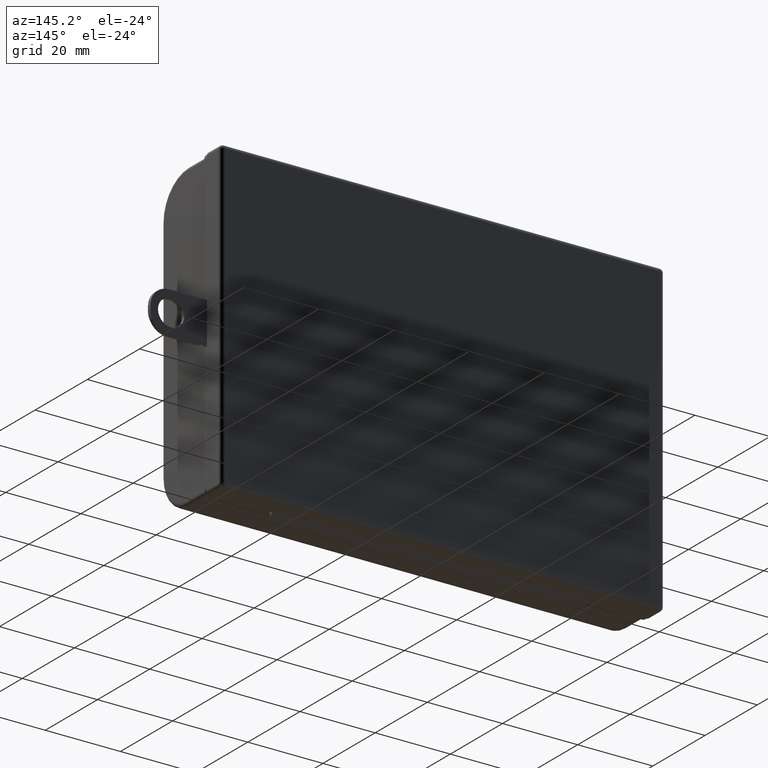
[diagram: clean part render]
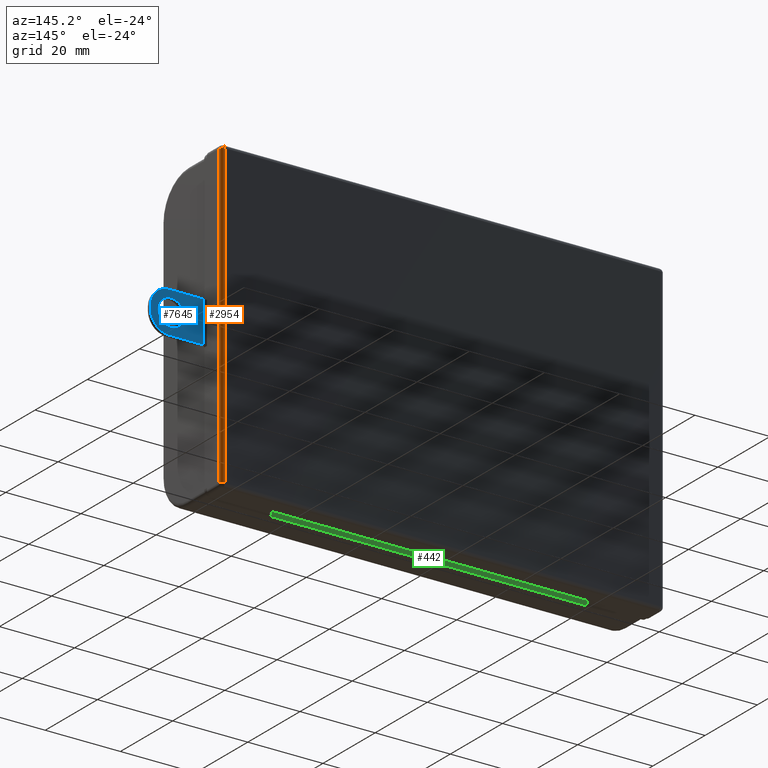
[diagram: same view with three faces highlighted in distinct colors, each labeled with its STEP entity id]
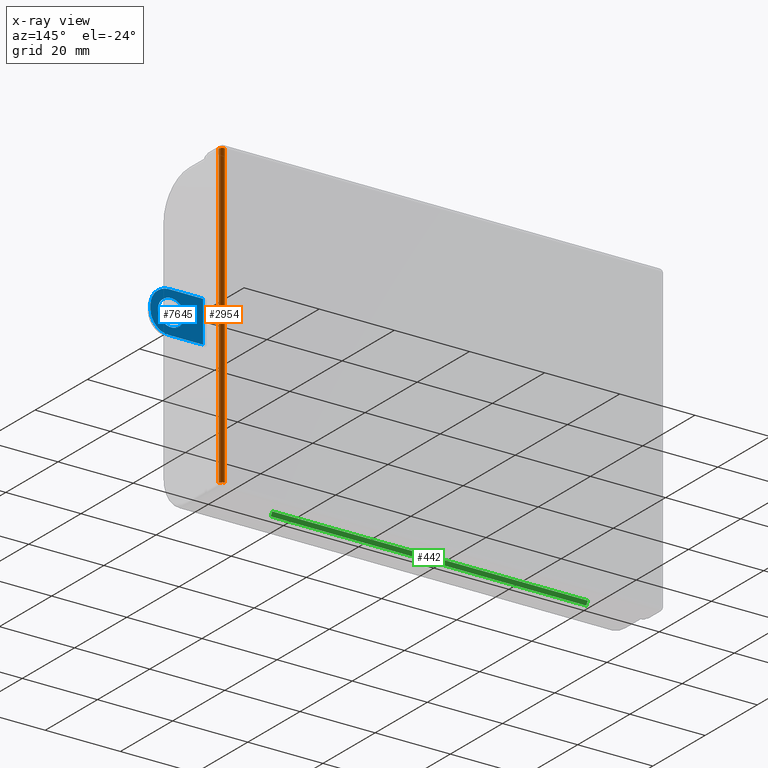
[diagram: x-ray of the same camera — body ghosted, the three highlighted faces saturated]
A machine part, auxiliary view with three faces highlighted in distinct colors.
The next image is the same camera in x-ray (body ghosted, the three faces saturated) — at least one of them is partly hidden behind the body in this view.
Their STEP definitions:

[orange] entity #2954 — the highlighted cylindrical surface (edge-blend (fillet) strip) has radius 1 mm, axis along (0, 0, 1).
#43 = CIRCLE ( 'NONE', #1108, 1.000000000000000888 ) ;
#134 = DIRECTION ( 'NONE',  ( 1.692413147294446463E-16, -0.000000000000000000, 1.000000000000000000 ) ) ;
#218 = DIRECTION ( 'NONE',  ( 1.000000000000000000, 0.000000000000000000, -1.692413147294445970E-16 ) ) ;
#403 = CARTESIAN_POINT ( 'NONE',  ( 57.99999999999997868, 5.500000000000000000, 39.99999999999997868 ) ) ;
#559 = CIRCLE ( 'NONE', #4786, 1.000000000000000888 ) ;
#675 = FACE_OUTER_BOUND ( 'NONE', #4752, .T. ) ;
#822 = EDGE_CURVE ( 'NONE', #4775, #4637, #3557, .T. ) ;
#1108 = AXIS2_PLACEMENT_3D ( 'NONE', #7493, #1829, #6257 ) ;
#1570 = EDGE_CURVE ( 'NONE', #7530, #7844, #6722, .T. ) ;
#1663 = ORIENTED_EDGE ( 'NONE', *, *, #1570, .F. ) ;
#1829 = DIRECTION ( 'NONE',  ( 0.000000000000000000, 0.000000000000000000, -1.000000000000000000 ) ) ;
#2076 = CARTESIAN_POINT ( 'NONE',  ( 58.99999999999996447, 5.500000000000000000, -40.00000000000000711 ) ) ;
#2082 = EDGE_CURVE ( 'NONE', #7844, #4775, #43, .T. ) ;
#2386 = EDGE_CURVE ( 'NONE', #7530, #4637, #559, .T. ) ;
#2413 = CARTESIAN_POINT ( 'NONE',  ( 58.99999999999997868, 5.500000000000000000, 39.99999999999997868 ) ) ;
#2434 = ORIENTED_EDGE ( 'NONE', *, *, #2386, .T. ) ;
#2794 = CARTESIAN_POINT ( 'NONE',  ( 57.99999999999996447, 6.500000000000000000, -40.00000000000000711 ) ) ;
#2954 = ADVANCED_FACE ( 'NONE', ( #675 ), #3197, .T. ) ;
#3197 = CYLINDRICAL_SURFACE ( 'NONE', #6828, 1.000000000000000888 ) ;
#3258 = VECTOR ( 'NONE', #4105, 1000.000000000000000 ) ;
#3557 = LINE ( 'NONE', #4257, #3614 ) ;
#3614 = VECTOR ( 'NONE', #5006, 1000.000000000000000 ) ;
#4105 = DIRECTION ( 'NONE',  ( -1.692413147294446463E-16, 0.000000000000000000, -1.000000000000000000 ) ) ;
#4257 = CARTESIAN_POINT ( 'NONE',  ( 58.99999999999997868, 5.500000000000000000, 39.99999999999997868 ) ) ;
#4300 = ORIENTED_EDGE ( 'NONE', *, *, #2082, .F. ) ;
#4510 = ORIENTED_EDGE ( 'NONE', *, *, #822, .F. ) ;
#4637 = VERTEX_POINT ( 'NONE', #2413 ) ;
#4748 = DIRECTION ( 'NONE',  ( -1.000000000000000000, 0.000000000000000000, 0.000000000000000000 ) ) ;
#4752 = EDGE_LOOP ( 'NONE', ( #2434, #4510, #4300, #1663 ) ) ;
#4775 = VERTEX_POINT ( 'NONE', #2076 ) ;
#4786 = AXIS2_PLACEMENT_3D ( 'NONE', #403, #6046, #4748 ) ;
#5006 = DIRECTION ( 'NONE',  ( 1.692413147294446463E-16, -0.000000000000000000, 1.000000000000000000 ) ) ;
#5933 = CARTESIAN_POINT ( 'NONE',  ( 57.99999999999997158, 5.500000000000000000, -9.815996254307784061E-15 ) ) ;
#6046 = DIRECTION ( 'NONE',  ( 0.000000000000000000, 0.000000000000000000, -1.000000000000000000 ) ) ;
#6257 = DIRECTION ( 'NONE',  ( -1.000000000000000000, 0.000000000000000000, 0.000000000000000000 ) ) ;
#6722 = LINE ( 'NONE', #2794, #3258 ) ;
#6765 = CARTESIAN_POINT ( 'NONE',  ( 57.99999999999997868, 6.500000000000000000, 39.99999999999999289 ) ) ;
#6828 = AXIS2_PLACEMENT_3D ( 'NONE', #5933, #134, #218 ) ;
#7015 = CARTESIAN_POINT ( 'NONE',  ( 57.99999999999996447, 6.500000000000000000, -40.00000000000000711 ) ) ;
#7493 = CARTESIAN_POINT ( 'NONE',  ( 57.99999999999996447, 5.500000000000000000, -40.00000000000000711 ) ) ;
#7530 = VERTEX_POINT ( 'NONE', #6765 ) ;
#7844 = VERTEX_POINT ( 'NONE', #7015 ) ;

[blue] entity #7645 — the highlighted planar face has unit normal (-0, 1, 0).
#11 = FACE_OUTER_BOUND ( 'NONE', #5202, .T. ) ;
#161 = CARTESIAN_POINT ( 'NONE',  ( 5.500000000000002665, 1.000000000000000000, -1.500000000000002220 ) ) ;
#347 = CARTESIAN_POINT ( 'NONE',  ( 5.500000000000001776, 1.000000000000000000, -6.500000000000000000 ) ) ;
#383 = LINE ( 'NONE', #347, #3647 ) ;
#397 = EDGE_CURVE ( 'NONE', #7100, #7833, #6881, .T. ) ;
#447 = CARTESIAN_POINT ( 'NONE',  ( 0.5000000000000022204, 1.000000000000000000, -6.500000000000000000 ) ) ;
#468 = ORIENTED_EDGE ( 'NONE', *, *, #7293, .T. ) ;
#479 = VERTEX_POINT ( 'NONE', #4310 ) ;
#568 = DIRECTION ( 'NONE',  ( 0.000000000000000000, 1.000000000000000000, 0.000000000000000000 ) ) ;
#598 = PLANE ( 'NONE',  #1359 ) ;
#620 = EDGE_CURVE ( 'NONE', #7933, #6187, #7087, .T. ) ;
#793 = CARTESIAN_POINT ( 'NONE',  ( 5.500000000000000000, 0.9999999999999995559, 7.500000000000000000 ) ) ;
#797 = CIRCLE ( 'NONE', #6085, 3.500000000000000000 ) ;
#1020 = CARTESIAN_POINT ( 'NONE',  ( -0.4999999999999989453, 1.000000000000000000, -1.499999999999999556 ) ) ;
#1083 = CARTESIAN_POINT ( 'NONE',  ( 5.500000000000000000, 0.9999999999999995559, 7.500000000000000000 ) ) ;
#1224 = AXIS2_PLACEMENT_3D ( 'NONE', #6084, #2812, #4011 ) ;
#1240 = CIRCLE ( 'NONE', #2309, 5.000000000000000000 ) ;
#1288 = LINE ( 'NONE', #6342, #4280 ) ;
#1359 = AXIS2_PLACEMENT_3D ( 'NONE', #5648, #2592, #6973 ) ;
#1491 = CIRCLE ( 'NONE', #1224, 3.500000000000000000 ) ;
#1531 = EDGE_CURVE ( 'NONE', #7933, #4730, #383, .T. ) ;
#1854 = ORIENTED_EDGE ( 'NONE', *, *, #2267, .T. ) ;
#2267 = EDGE_CURVE ( 'NONE', #479, #6187, #1288, .T. ) ;
#2299 = EDGE_CURVE ( 'NONE', #8123, #6070, #1491, .T. ) ;
#2309 = AXIS2_PLACEMENT_3D ( 'NONE', #5707, #568, #5623 ) ;
#2312 = ORIENTED_EDGE ( 'NONE', *, *, #1531, .T. ) ;
#2343 = DIRECTION ( 'NONE',  ( -1.334402673828313339E-16, -0.000000000000000000, -1.000000000000000000 ) ) ;
#2482 = DIRECTION ( 'NONE',  ( 0.000000000000000000, 0.000000000000000000, 1.000000000000000000 ) ) ;
#2532 = EDGE_LOOP ( 'NONE', ( #7548, #3696 ) ) ;
#2592 = DIRECTION ( 'NONE',  ( 0.000000000000000000, 1.000000000000000000, 0.000000000000000000 ) ) ;
#2812 = DIRECTION ( 'NONE',  ( 0.000000000000000000, 1.000000000000000000, 0.000000000000000000 ) ) ;
#2870 = ORIENTED_EDGE ( 'NONE', *, *, #4209, .T. ) ;
#3064 = CARTESIAN_POINT ( 'NONE',  ( 0.000000000000000000, 1.000000000000000000, -4.500000000000000888 ) ) ;
#3095 = CARTESIAN_POINT ( 'NONE',  ( 0.000000000000000000, 1.000000000000000000, -1.000000000000000000 ) ) ;
#3315 = DIRECTION ( 'NONE',  ( -1.000000000000000000, -0.000000000000000000, -0.000000000000000000 ) ) ;
#3403 = CARTESIAN_POINT ( 'NONE',  ( -0.4999999999999987232, 1.000000000000000000, -6.500000000000000000 ) ) ;
#3473 = VECTOR ( 'NONE', #3315, 1000.000000000000000 ) ;
#3603 = CARTESIAN_POINT ( 'NONE',  ( -5.500000000000000000, 0.9999999999999995559, 7.500000000000000000 ) ) ;
#3647 = VECTOR ( 'NONE', #2343, 1000.000000000000000 ) ;
#3648 = ORIENTED_EDGE ( 'NONE', *, *, #397, .T. ) ;
#3696 = ORIENTED_EDGE ( 'NONE', *, *, #4987, .F. ) ;
#4011 = DIRECTION ( 'NONE',  ( 0.000000000000000000, 0.000000000000000000, 1.000000000000000000 ) ) ;
#4075 = DIRECTION ( 'NONE',  ( 0.000000000000000000, 1.000000000000000000, 0.000000000000000000 ) ) ;
#4209 = EDGE_CURVE ( 'NONE', #7833, #479, #7098, .T. ) ;
#4280 = VECTOR ( 'NONE', #5842, 1000.000000000000000 ) ;
#4310 = CARTESIAN_POINT ( 'NONE',  ( -5.499999999999999112, 1.000000000000000000, -1.500000000000000444 ) ) ;
#4730 = VERTEX_POINT ( 'NONE', #161 ) ;
#4987 = EDGE_CURVE ( 'NONE', #6070, #8123, #797, .T. ) ;
#5018 = CARTESIAN_POINT ( 'NONE',  ( -5.500000000000000000, 1.000000000000000000, -6.500000000000000000 ) ) ;
#5202 = EDGE_LOOP ( 'NONE', ( #2312, #468, #3648, #2870, #1854, #6309 ) ) ;
#5480 = DIRECTION ( 'NONE',  ( -1.000000000000000000, -0.000000000000000000, -0.000000000000000000 ) ) ;
#5623 = DIRECTION ( 'NONE',  ( 0.000000000000000000, 0.000000000000000000, 1.000000000000000000 ) ) ;
#5648 = CARTESIAN_POINT ( 'NONE',  ( 0.000000000000000000, 1.000000000000000000, 0.000000000000000000 ) ) ;
#5707 = CARTESIAN_POINT ( 'NONE',  ( 0.5000000000000022204, 1.000000000000000000, -1.499999999999999556 ) ) ;
#5842 = DIRECTION ( 'NONE',  ( 1.334402673828313339E-16, 0.000000000000000000, 1.000000000000000000 ) ) ;
#6070 = VERTEX_POINT ( 'NONE', #6591 ) ;
#6084 = CARTESIAN_POINT ( 'NONE',  ( 0.000000000000000000, 1.000000000000000000, -1.000000000000000000 ) ) ;
#6085 = AXIS2_PLACEMENT_3D ( 'NONE', #3095, #6293, #2482 ) ;
#6187 = VERTEX_POINT ( 'NONE', #3603 ) ;
#6293 = DIRECTION ( 'NONE',  ( 0.000000000000000000, 1.000000000000000000, 0.000000000000000000 ) ) ;
#6309 = ORIENTED_EDGE ( 'NONE', *, *, #620, .F. ) ;
#6316 = FACE_BOUND ( 'NONE', #2532, .T. ) ;
#6342 = CARTESIAN_POINT ( 'NONE',  ( -5.500000000000000000, 1.000000000000000000, -6.500000000000000000 ) ) ;
#6399 = VECTOR ( 'NONE', #5480, 1000.000000000000000 ) ;
#6591 = CARTESIAN_POINT ( 'NONE',  ( 4.286263797015736595E-16, 1.000000000000000000, 2.500000000000000000 ) ) ;
#6881 = LINE ( 'NONE', #5018, #6399 ) ;
#6973 = DIRECTION ( 'NONE',  ( 0.000000000000000000, -0.000000000000000000, 1.000000000000000000 ) ) ;
#7087 = LINE ( 'NONE', #793, #3473 ) ;
#7098 = CIRCLE ( 'NONE', #7759, 5.000000000000000000 ) ;
#7100 = VERTEX_POINT ( 'NONE', #447 ) ;
#7293 = EDGE_CURVE ( 'NONE', #4730, #7100, #1240, .T. ) ;
#7548 = ORIENTED_EDGE ( 'NONE', *, *, #2299, .F. ) ;
#7645 = ADVANCED_FACE ( 'NONE', ( #11, #6316 ), #598, .T. ) ;
#7759 = AXIS2_PLACEMENT_3D ( 'NONE', #1020, #4075, #7928 ) ;
#7833 = VERTEX_POINT ( 'NONE', #3403 ) ;
#7928 = DIRECTION ( 'NONE',  ( 0.000000000000000000, 0.000000000000000000, 1.000000000000000000 ) ) ;
#7933 = VERTEX_POINT ( 'NONE', #1083 ) ;
#8123 = VERTEX_POINT ( 'NONE', #3064 ) ;

[green] entity #442 — the highlighted planar face has unit normal (0, -0.866, 0.5).
#442 = ADVANCED_FACE ( 'NONE', ( #545 ), #504, .F. ) ;
#482 = CARTESIAN_POINT ( 'NONE',  ( 42.00000000000000000, 1.000000000000000000, -41.99999999999999289 ) ) ;
#504 = PLANE ( 'NONE',  #2945 ) ;
#545 = FACE_OUTER_BOUND ( 'NONE', #4568, .T. ) ;
#551 = LINE ( 'NONE', #6974, #1470 ) ;
#1255 = DIRECTION ( 'NONE',  ( 0.000000000000000000, -0.8660254037844393737, 0.4999999999999987232 ) ) ;
#1470 = VECTOR ( 'NONE', #1841, 1000.000000000000227 ) ;
#1496 = VERTEX_POINT ( 'NONE', #6107 ) ;
#1841 = DIRECTION ( 'NONE',  ( 0.000000000000000000, 0.4999999999999986677, 0.8660254037844393737 ) ) ;
#2202 = ORIENTED_EDGE ( 'NONE', *, *, #6995, .F. ) ;
#2317 = LINE ( 'NONE', #482, #8149 ) ;
#2771 = CARTESIAN_POINT ( 'NONE',  ( 42.00000000000000000, 1.000000000000000000, -41.99999999999999289 ) ) ;
#2945 = AXIS2_PLACEMENT_3D ( 'NONE', #4349, #1255, #7464 ) ;
#3433 = VERTEX_POINT ( 'NONE', #5983 ) ;
#3692 = DIRECTION ( 'NONE',  ( -1.000000000000000000, -0.000000000000000000, -0.000000000000000000 ) ) ;
#4248 = EDGE_CURVE ( 'NONE', #3433, #7049, #2317, .T. ) ;
#4272 = ORIENTED_EDGE ( 'NONE', *, *, #7715, .F. ) ;
#4349 = CARTESIAN_POINT ( 'NONE',  ( 42.00000000000000000, 1.000000000000000000, -41.99999999999999289 ) ) ;
#4508 = CARTESIAN_POINT ( 'NONE',  ( -42.00000000000000000, 1.000000000000000000, -41.99999999999999289 ) ) ;
#4550 = LINE ( 'NONE', #2771, #7719 ) ;
#4568 = EDGE_LOOP ( 'NONE', ( #7822, #4272, #2202, #7451 ) ) ;
#4985 = CARTESIAN_POINT ( 'NONE',  ( 42.00000000000000000, 1.577350269189616183, -41.00000000000000711 ) ) ;
#5215 = DIRECTION ( 'NONE',  ( 0.000000000000000000, 0.4999999999999986677, 0.8660254037844393737 ) ) ;
#5891 = VERTEX_POINT ( 'NONE', #7508 ) ;
#5957 = EDGE_CURVE ( 'NONE', #7049, #5891, #551, .T. ) ;
#5983 = CARTESIAN_POINT ( 'NONE',  ( 42.00000000000000000, 1.000000000000000000, -41.99999999999999289 ) ) ;
#6107 = CARTESIAN_POINT ( 'NONE',  ( 42.00000000000000000, 1.577350269189617515, -41.00000000000000711 ) ) ;
#6247 = VECTOR ( 'NONE', #3692, 1000.000000000000000 ) ;
#6355 = LINE ( 'NONE', #4985, #6247 ) ;
#6691 = DIRECTION ( 'NONE',  ( -1.000000000000000000, -0.000000000000000000, -0.000000000000000000 ) ) ;
#6974 = CARTESIAN_POINT ( 'NONE',  ( -42.00000000000000000, 1.000000000000000000, -41.99999999999999289 ) ) ;
#6995 = EDGE_CURVE ( 'NONE', #3433, #1496, #4550, .T. ) ;
#7049 = VERTEX_POINT ( 'NONE', #4508 ) ;
#7451 = ORIENTED_EDGE ( 'NONE', *, *, #4248, .T. ) ;
#7464 = DIRECTION ( 'NONE',  ( 0.000000000000000000, -0.4999999999999986677, -0.8660254037844392627 ) ) ;
#7508 = CARTESIAN_POINT ( 'NONE',  ( -42.00000000000000000, 1.577350269189616183, -41.00000000000000711 ) ) ;
#7715 = EDGE_CURVE ( 'NONE', #1496, #5891, #6355, .T. ) ;
#7719 = VECTOR ( 'NONE', #5215, 1000.000000000000227 ) ;
#7822 = ORIENTED_EDGE ( 'NONE', *, *, #5957, .T. ) ;
#8149 = VECTOR ( 'NONE', #6691, 1000.000000000000000 ) ;